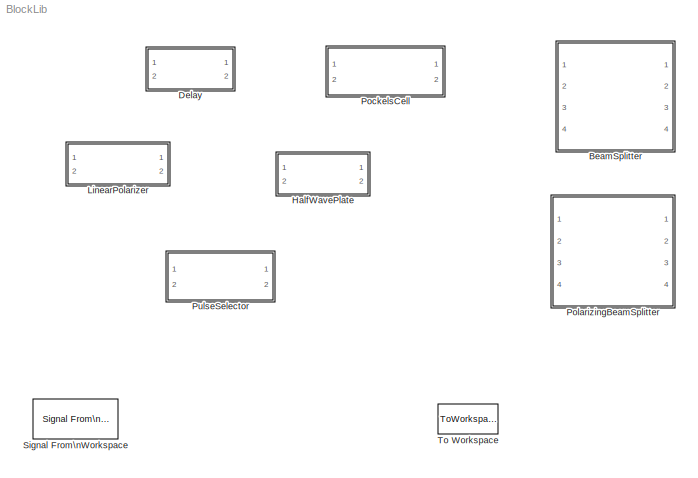
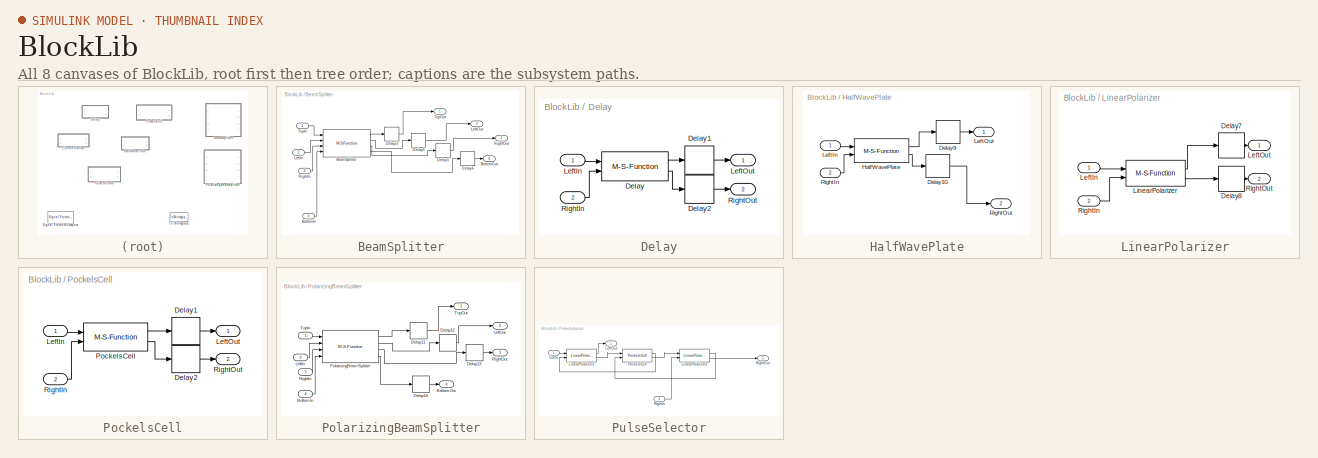
[diagram: thumbnail index - all 8 canvases of the model, root first then tree order]
MODEL BlockLib
KIND library
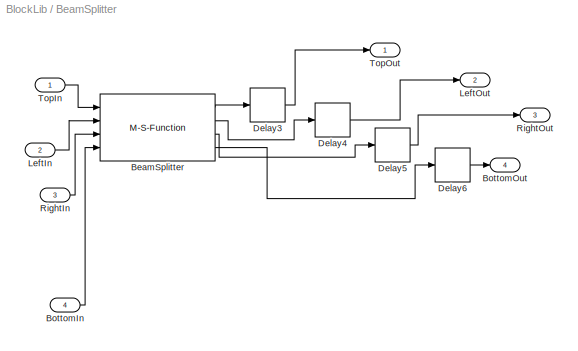
BLOCK [SubSystem] BeamSplitter
  FunctionWithSeparateData = off
  MaskHideContents = off
  MinAlgLoopOccurrences = off
  Opaque = off
  Ports = [4, 4]
  PropExecContextOutsideSubsystem = off
  RTWSystemCode = Auto
  RequestExecContextInheritance = off
  SID = 59
BLOCK [M-S-Function] BeamSplitter/BeamSplitter
  FunctionName = fourwaycomponent_s
  Parameters = 'BeamSplitter',Params
  Ports = [4, 4]
  SID = 1
BLOCK [Inport] BeamSplitter/BottomIn
  IconDisplay = Port number
  Port = 4
  SID = 63
BLOCK [Outport] BeamSplitter/BottomOut
  IconDisplay = Port number
  Port = 4
  SID = 67
BLOCK [Delay] BeamSplitter/Delay3
  DelayLength = 1
  InitialCondition = 0
  InputPortMap = u0
  Ports = [1, 1]
  SID = 24
BLOCK [Delay] BeamSplitter/Delay4
  DelayLength = 1
  InitialCondition = 0
  InputPortMap = u0
  Ports = [1, 1]
  SID = 25
BLOCK [Delay] BeamSplitter/Delay5
  DelayLength = 1
  InitialCondition = 0
  InputPortMap = u0
  Ports = [1, 1]
  SID = 26
BLOCK [Delay] BeamSplitter/Delay6
  DelayLength = 1
  InitialCondition = 0
  InputPortMap = u0
  Ports = [1, 1]
  SID = 27
BLOCK [Inport] BeamSplitter/LeftIn
  IconDisplay = Port number
  Port = 2
  SID = 61
BLOCK [Outport] BeamSplitter/LeftOut
  IconDisplay = Port number
  Port = 2
  SID = 65
BLOCK [Inport] BeamSplitter/RightIn
  IconDisplay = Port number
  Port = 3
  SID = 62
BLOCK [Outport] BeamSplitter/RightOut
  IconDisplay = Port number
  Port = 3
  SID = 66
BLOCK [Inport] BeamSplitter/TopIn
  IconDisplay = Port number
  SID = 60
BLOCK [Outport] BeamSplitter/TopOut
  IconDisplay = Port number
  SID = 64
BLOCK [SubSystem] Delay
  FunctionWithSeparateData = off
  MaskHideContents = off
  MinAlgLoopOccurrences = off
  Opaque = off
  Ports = [2, 2]
  PropExecContextOutsideSubsystem = off
  RTWSystemCode = Auto
  RequestExecContextInheritance = off
  SID = 17
BLOCK [M-S-Function] Delay/Delay
  FunctionName = component_s
  Parameters = 'Delay',Params
  Ports = [2, 2]
  SID = 2
BLOCK [Delay] Delay/Delay1
  DelayLength = 1
  InitialCondition = 0
  InputPortMap = u0
  Ports = [1, 1]
  SID = 15
BLOCK [Delay] Delay/Delay2
  DelayLength = 1
  InitialCondition = 0
  InputPortMap = u0
  Ports = [1, 1]
  SID = 16
BLOCK [Inport] Delay/LeftIn
  IconDisplay = Port number
  SID = 18
BLOCK [Outport] Delay/LeftOut
  IconDisplay = Port number
  SID = 20
BLOCK [Inport] Delay/RightIn
  IconDisplay = Port number
  Port = 2
  SID = 19
BLOCK [Outport] Delay/RightOut
  IconDisplay = Port number
  Port = 2
  SID = 21
BLOCK [SubSystem] HalfWavePlate
  FunctionWithSeparateData = off
  MaskHideContents = off
  MinAlgLoopOccurrences = off
  Opaque = off
  Ports = [2, 2]
  PropExecContextOutsideSubsystem = off
  RTWSystemCode = Auto
  RequestExecContextInheritance = off
  SID = 78
BLOCK [Delay] HalfWavePlate/Delay10
  DelayLength = 1
  InitialCondition = 0
  InputPortMap = u0
  Ports = [1, 1]
  SID = 31
BLOCK [Delay] HalfWavePlate/Delay9
  DelayLength = 1
  InitialCondition = 0
  InputPortMap = u0
  Ports = [1, 1]
  SID = 30
BLOCK [M-S-Function] HalfWavePlate/HalfWavePlate
  FunctionName = component_s
  Parameters = 'HalfWavePlate',Params
  Ports = [2, 2]
  SID = 3
BLOCK [Inport] HalfWavePlate/LeftIn
  IconDisplay = Port number
  SID = 79
BLOCK [Outport] HalfWavePlate/LeftOut
  IconDisplay = Port number
  SID = 81
BLOCK [Inport] HalfWavePlate/RightIn
  IconDisplay = Port number
  Port = 2
  SID = 80
BLOCK [Outport] HalfWavePlate/RightOut
  IconDisplay = Port number
  Port = 2
  SID = 82
BLOCK [SubSystem] LinearPolarizer
  FunctionWithSeparateData = off
  MaskHideContents = off
  MinAlgLoopOccurrences = off
  Opaque = off
  Ports = [2, 2]
  PropExecContextOutsideSubsystem = off
  RTWSystemCode = Auto
  RequestExecContextInheritance = off
  SID = 73
BLOCK [Delay] LinearPolarizer/Delay7
  DelayLength = 1
  InitialCondition = 0
  InputPortMap = u0
  Ports = [1, 1]
  SID = 28
BLOCK [Delay] LinearPolarizer/Delay8
  DelayLength = 1
  InitialCondition = 0
  InputPortMap = u0
  Ports = [1, 1]
  SID = 29
BLOCK [Inport] LinearPolarizer/LeftIn
  IconDisplay = Port number
  SID = 74
BLOCK [Outport] LinearPolarizer/LeftOut
  IconDisplay = Port number
  SID = 76
BLOCK [M-S-Function] LinearPolarizer/LinearPolarizer
  FunctionName = component_s
  Parameters = 'LinearPolarizer',Params
  Ports = [2, 2]
  SID = 4
BLOCK [Inport] LinearPolarizer/RightIn
  IconDisplay = Port number
  Port = 2
  SID = 75
BLOCK [Outport] LinearPolarizer/RightOut
  IconDisplay = Port number
  Port = 2
  SID = 77
BLOCK [SubSystem] PockelsCell
  FunctionWithSeparateData = off
  MaskHideContents = off
  MinAlgLoopOccurrences = off
  Opaque = off
  Ports = [2, 2]
  PropExecContextOutsideSubsystem = off
  RTWSystemCode = Auto
  RequestExecContextInheritance = off
  SID = 43
BLOCK [Delay] PockelsCell/Delay1
  DelayLength = 1
  InitialCondition = 0
  InputPortMap = u0
  Ports = [1, 1]
  SID = 22
BLOCK [Delay] PockelsCell/Delay2
  DelayLength = 1
  InitialCondition = 0
  InputPortMap = u0
  Ports = [1, 1]
  SID = 23
BLOCK [Inport] PockelsCell/LeftIn
  IconDisplay = Port number
  SID = 44
BLOCK [Outport] PockelsCell/LeftOut
  IconDisplay = Port number
  SID = 46
BLOCK [M-S-Function] PockelsCell/PockelsCell
  FunctionName = component_s
  Parameters = 'PockelsCell',Params
  Ports = [2, 2]
  SID = 5
BLOCK [Inport] PockelsCell/RightIn
  IconDisplay = Port number
  Port = 2
  SID = 45
BLOCK [Outport] PockelsCell/RightOut
  IconDisplay = Port number
  Port = 2
  SID = 47
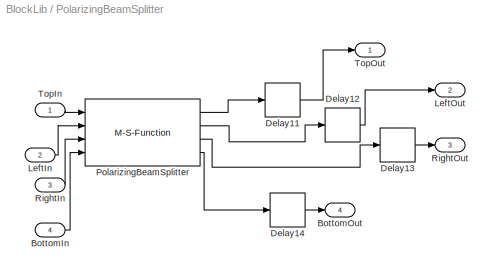
BLOCK [SubSystem] PolarizingBeamSplitter
  FunctionWithSeparateData = off
  MaskHideContents = off
  MinAlgLoopOccurrences = off
  Opaque = off
  Ports = [4, 4]
  PropExecContextOutsideSubsystem = off
  RTWSystemCode = Auto
  RequestExecContextInheritance = off
  SID = 83
BLOCK [Inport] PolarizingBeamSplitter/BottomIn
  IconDisplay = Port number
  Port = 4
  SID = 87
BLOCK [Outport] PolarizingBeamSplitter/BottomOut
  IconDisplay = Port number
  Port = 4
  SID = 91
BLOCK [Delay] PolarizingBeamSplitter/Delay11
  DelayLength = 1
  InitialCondition = 0
  InputPortMap = u0
  Ports = [1, 1]
  SID = 32
BLOCK [Delay] PolarizingBeamSplitter/Delay12
  DelayLength = 1
  InitialCondition = 0
  InputPortMap = u0
  Ports = [1, 1]
  SID = 33
BLOCK [Delay] PolarizingBeamSplitter/Delay13
  DelayLength = 1
  InitialCondition = 0
  InputPortMap = u0
  Ports = [1, 1]
  SID = 34
BLOCK [Delay] PolarizingBeamSplitter/Delay14
  DelayLength = 1
  InitialCondition = 0
  InputPortMap = u0
  Ports = [1, 1]
  SID = 35
BLOCK [Inport] PolarizingBeamSplitter/LeftIn
  IconDisplay = Port number
  Port = 2
  SID = 85
BLOCK [Outport] PolarizingBeamSplitter/LeftOut
  IconDisplay = Port number
  Port = 2
  SID = 89
BLOCK [M-S-Function] PolarizingBeamSplitter/PolarizingBeamSplitter
  FunctionName = fourwaycomponent_s
  Parameters = 'PolarizingBeamSplitter',Params
  Ports = [4, 4]
  SID = 6
BLOCK [Inport] PolarizingBeamSplitter/RightIn
  IconDisplay = Port number
  Port = 3
  SID = 86
BLOCK [Outport] PolarizingBeamSplitter/RightOut
  IconDisplay = Port number
  Port = 3
  SID = 90
BLOCK [Inport] PolarizingBeamSplitter/TopIn
  IconDisplay = Port number
  SID = 84
BLOCK [Outport] PolarizingBeamSplitter/TopOut
  IconDisplay = Port number
  SID = 88
BLOCK [SubSystem] PulseSelector
  FunctionWithSeparateData = off
  MaskHideContents = off
  MinAlgLoopOccurrences = off
  Opaque = off
  Ports = [2, 2]
  PropExecContextOutsideSubsystem = off
  RTWSystemCode = Auto
  RequestExecContextInheritance = off
  SID = 10
BLOCK [Inport] PulseSelector/LeftIn
  IconDisplay = Port number
  SID = 11
BLOCK [Outport] PulseSelector/LeftOut
  IconDisplay = Port number
  SID = 13
BLOCK [Reference] PulseSelector/LinearPolarizer1  REF=BlockLib/LinearPolarizer
  ExtinctionRatio = 200000000
  Ports = [2, 2]
  Psi = 0
  SID = 7
  SourceBlock = BlockLib/LinearPolarizer
  Transmittence = 0.81
BLOCK [Reference] PulseSelector/LinearPolarizer2  REF=BlockLib/LinearPolarizer
  ExtinctionRatio = 200000000
  Ports = [2, 2]
  Psi = pi/2
  SID = 9
  SourceBlock = BlockLib/LinearPolarizer
  Transmittence = 0.81
BLOCK [Reference] PulseSelector/PockelsCell  REF=BlockLib/PockelsCell
  ControlPowers = ControlPowers
  PCTimings = PCTimings
  Ports = [2, 2]
  Psi = pi/4
  SID = 8
  SourceBlock = BlockLib/PockelsCell
BLOCK [Inport] PulseSelector/RightIn
  IconDisplay = Port number
  Port = 2
  SID = 12
BLOCK [Outport] PulseSelector/RightOut
  IconDisplay = Port number
  Port = 2
  SID = 14
BLOCK [Reference] Signal From\nWorkspace  REF=dspsrcs4/Signal From\nWorkspace
  OutputAfterFinalValue = Setting to zero
  Ports = [0, 1]
  SID = 92
  SourceBlock = dspsrcs4/Signal From\nWorkspace
  SourceType = Signal From Workspace
  Ts = 1
  X = inputsignal
  ignoreOrWarnInputAndFrameLengths = off
  nsamps = 1
BLOCK [ToWorkspace] To Workspace
  FixptAsFi = on
  MaxDataPoints = inf
  Ports = [1]
  SID = 93
  SampleTime = -1
  SaveFormat = Timeseries
  VariableName = simout
LINE BeamSplitter/BeamSplitter:1 -> BeamSplitter/Delay3:1
LINE BeamSplitter/BeamSplitter:2 -> BeamSplitter/Delay4:1
LINE BeamSplitter/BeamSplitter:3 -> BeamSplitter/Delay5:1
LINE BeamSplitter/BeamSplitter:4 -> BeamSplitter/Delay6:1
LINE BeamSplitter/BottomIn:1 -> BeamSplitter/BeamSplitter:4
LINE BeamSplitter/Delay3:1 -> BeamSplitter/TopOut:1
LINE BeamSplitter/Delay4:1 -> BeamSplitter/LeftOut:1
LINE BeamSplitter/Delay5:1 -> BeamSplitter/RightOut:1
LINE BeamSplitter/Delay6:1 -> BeamSplitter/BottomOut:1
LINE BeamSplitter/LeftIn:1 -> BeamSplitter/BeamSplitter:2
LINE BeamSplitter/RightIn:1 -> BeamSplitter/BeamSplitter:3
LINE BeamSplitter/TopIn:1 -> BeamSplitter/BeamSplitter:1
LINE Delay/Delay1:1 -> Delay/LeftOut:1
LINE Delay/Delay2:1 -> Delay/RightOut:1
LINE Delay/Delay:1 -> Delay/Delay1:1
LINE Delay/Delay:2 -> Delay/Delay2:1
LINE Delay/LeftIn:1 -> Delay/Delay:1
LINE Delay/RightIn:1 -> Delay/Delay:2
LINE HalfWavePlate/Delay10:1 -> HalfWavePlate/RightOut:1
LINE HalfWavePlate/Delay9:1 -> HalfWavePlate/LeftOut:1
LINE HalfWavePlate/HalfWavePlate:1 -> HalfWavePlate/Delay9:1
LINE HalfWavePlate/HalfWavePlate:2 -> HalfWavePlate/Delay10:1
LINE HalfWavePlate/LeftIn:1 -> HalfWavePlate/HalfWavePlate:1
LINE HalfWavePlate/RightIn:1 -> HalfWavePlate/HalfWavePlate:2
LINE LinearPolarizer/Delay7:1 -> LinearPolarizer/LeftOut:1
LINE LinearPolarizer/Delay8:1 -> LinearPolarizer/RightOut:1
LINE LinearPolarizer/LeftIn:1 -> LinearPolarizer/LinearPolarizer:1
LINE LinearPolarizer/LinearPolarizer:1 -> LinearPolarizer/Delay7:1
LINE LinearPolarizer/LinearPolarizer:2 -> LinearPolarizer/Delay8:1
LINE LinearPolarizer/RightIn:1 -> LinearPolarizer/LinearPolarizer:2
LINE PockelsCell/Delay1:1 -> PockelsCell/LeftOut:1
LINE PockelsCell/Delay2:1 -> PockelsCell/RightOut:1
LINE PockelsCell/LeftIn:1 -> PockelsCell/PockelsCell:1
LINE PockelsCell/PockelsCell:1 -> PockelsCell/Delay1:1
LINE PockelsCell/PockelsCell:2 -> PockelsCell/Delay2:1
LINE PockelsCell/RightIn:1 -> PockelsCell/PockelsCell:2
LINE PolarizingBeamSplitter/BottomIn:1 -> PolarizingBeamSplitter/PolarizingBeamSplitter:4
LINE PolarizingBeamSplitter/Delay11:1 -> PolarizingBeamSplitter/TopOut:1
LINE PolarizingBeamSplitter/Delay12:1 -> PolarizingBeamSplitter/LeftOut:1
LINE PolarizingBeamSplitter/Delay13:1 -> PolarizingBeamSplitter/RightOut:1
LINE PolarizingBeamSplitter/Delay14:1 -> PolarizingBeamSplitter/BottomOut:1
LINE PolarizingBeamSplitter/LeftIn:1 -> PolarizingBeamSplitter/PolarizingBeamSplitter:2
LINE PolarizingBeamSplitter/PolarizingBeamSplitter:1 -> PolarizingBeamSplitter/Delay11:1
LINE PolarizingBeamSplitter/PolarizingBeamSplitter:2 -> PolarizingBeamSplitter/Delay12:1
LINE PolarizingBeamSplitter/PolarizingBeamSplitter:3 -> PolarizingBeamSplitter/Delay13:1
LINE PolarizingBeamSplitter/PolarizingBeamSplitter:4 -> PolarizingBeamSplitter/Delay14:1
LINE PolarizingBeamSplitter/RightIn:1 -> PolarizingBeamSplitter/PolarizingBeamSplitter:3
LINE PolarizingBeamSplitter/TopIn:1 -> PolarizingBeamSplitter/PolarizingBeamSplitter:1
LINE PulseSelector/LeftIn:1 -> PulseSelector/LinearPolarizer1:1
LINE PulseSelector/LinearPolarizer1:1 -> PulseSelector/LeftOut:1
LINE PulseSelector/LinearPolarizer1:2 -> PulseSelector/PockelsCell:1
LINE PulseSelector/LinearPolarizer2:1 -> PulseSelector/PockelsCell:2
LINE PulseSelector/LinearPolarizer2:2 -> PulseSelector/RightOut:1
LINE PulseSelector/PockelsCell:1 -> PulseSelector/LinearPolarizer1:2
LINE PulseSelector/PockelsCell:2 -> PulseSelector/LinearPolarizer2:1
LINE PulseSelector/RightIn:1 -> PulseSelector/LinearPolarizer2:2
